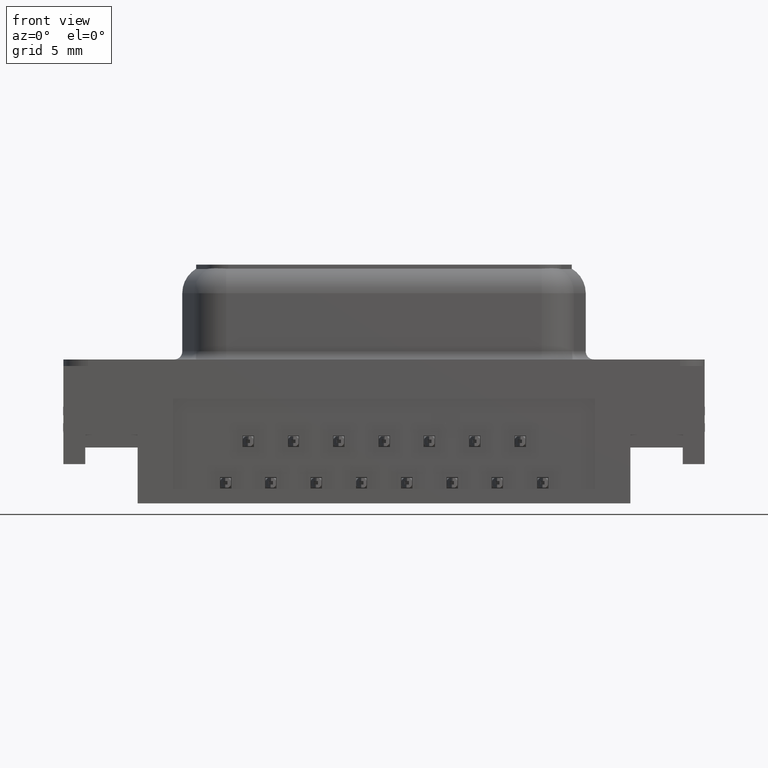
[diagram: clean part render]
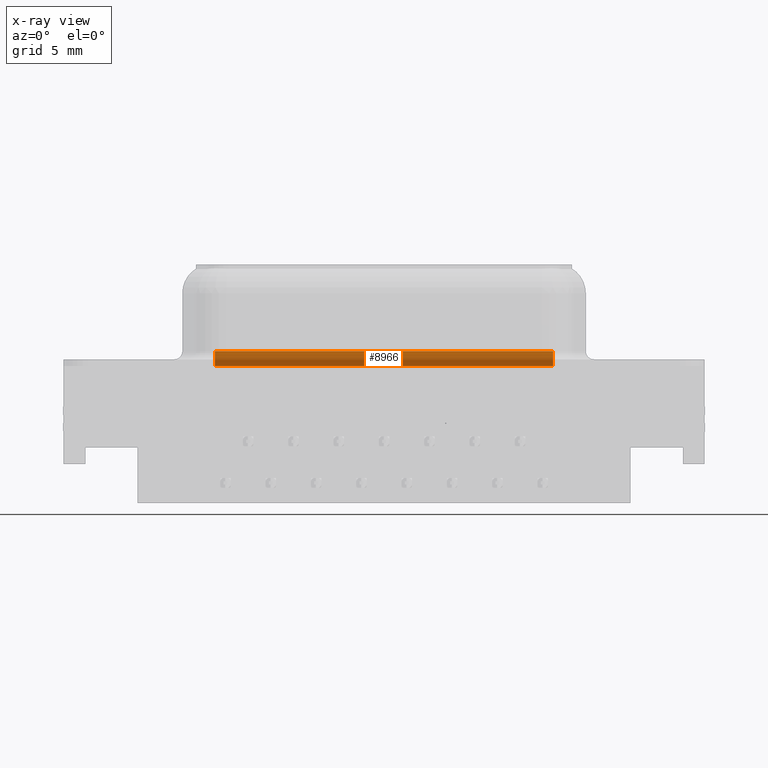
[diagram: x-ray — body ghosted, one internal face saturated and labeled with its STEP entity id]
A machine part, front view, then the same camera in x-ray: the body is ghosted and one INTERNAL B-rep face — a face not visible from any outside direction — is saturated and labeled: STEP entity #8966.
In plain terms, the highlighted cylindrical surface (edge-blend (fillet) strip) has radius 0.9 mm, axis along (-1, 0, 0).
Its self-contained STEP definition (entity closure, byte-faithful):
#137 = DIRECTION ( 'NONE',  ( 0.0000000000000000000, 1.000000000000000000, 0.0000000000000000000 ) ) ;
#684 = ORIENTED_EDGE ( 'NONE', *, *, #12441, .F. ) ;
#723 = DIRECTION ( 'NONE',  ( -1.000000000000000000, 1.679306365902039600E-016, 0.0000000000000000000 ) ) ;
#955 = CARTESIAN_POINT ( 'NONE',  ( 34.75499999999999500, 4.450000000000001100, 0.0000000000000000000 ) ) ;
#1250 = CARTESIAN_POINT ( 'NONE',  ( 26.98999999999999500, 3.549999999999996700, 0.8999999999999998000 ) ) ;
#1878 = DIRECTION ( 'NONE',  ( -1.000000000000000000, 1.679306365902039600E-016, 0.0000000000000000000 ) ) ;
#2197 = ORIENTED_EDGE ( 'NONE', *, *, #10938, .T. ) ;
#5005 = AXIS2_PLACEMENT_3D ( 'NONE', #9206, #723, #25189 ) ;
#5440 = AXIS2_PLACEMENT_3D ( 'NONE', #24093, #12134, #137 ) ;
#8000 = VERTEX_POINT ( 'NONE', #21009 ) ;
#8400 = CIRCLE ( 'NONE', #16498, 0.8999999999999998000 ) ;
#8966 = ADVANCED_FACE ( 'NONE', ( #17306 ), #11952, .T. ) ;
#9073 = VECTOR ( 'NONE', #20974, 1000.000000000000000 ) ;
#9206 = CARTESIAN_POINT ( 'NONE',  ( 6.330000000000000100, 4.450000000000001100, 0.8999999999999998000 ) ) ;
#9453 = VECTOR ( 'NONE', #16995, 1000.000000000000000 ) ;
#10938 = EDGE_CURVE ( 'NONE', #19751, #23447, #20051, .T. ) ;
#11952 = CYLINDRICAL_SURFACE ( 'NONE', #5005, 0.8999999999999998000 ) ;
#12134 = DIRECTION ( 'NONE',  ( -1.000000000000000000, 6.123233995736766000E-017, -0.0000000000000000000 ) ) ;
#12441 = EDGE_CURVE ( 'NONE', #8000, #23447, #8400, .T. ) ;
#12965 = CARTESIAN_POINT ( 'NONE',  ( 6.330000000000000100, 3.550000000000000300, 0.8999999999999998000 ) ) ;
#13248 = ORIENTED_EDGE ( 'NONE', *, *, #21512, .T. ) ;
#13858 = CARTESIAN_POINT ( 'NONE',  ( 6.330000000000000100, 4.450000000000001100, 0.8999999999999998000 ) ) ;
#14484 = EDGE_CURVE ( 'NONE', #16898, #19751, #23920, .T. ) ;
#15406 = LINE ( 'NONE', #955, #9453 ) ;
#15567 = EDGE_LOOP ( 'NONE', ( #684, #13248, #25784, #2197 ) ) ;
#15874 = DIRECTION ( 'NONE',  ( 0.0000000000000000000, -1.000000000000000000, 0.0000000000000000000 ) ) ;
#16498 = AXIS2_PLACEMENT_3D ( 'NONE', #13858, #1878, #15874 ) ;
#16898 = VERTEX_POINT ( 'NONE', #23725 ) ;
#16995 = DIRECTION ( 'NONE',  ( 1.000000000000000000, 0.0000000000000000000, -0.0000000000000000000 ) ) ;
#17306 = FACE_OUTER_BOUND ( 'NONE', #15567, .T. ) ;
#18692 = CARTESIAN_POINT ( 'NONE',  ( 6.330000000000000100, 3.550000000000000300, 0.8999999999999998000 ) ) ;
#19751 = VERTEX_POINT ( 'NONE', #1250 ) ;
#20051 = LINE ( 'NONE', #12965, #9073 ) ;
#20974 = DIRECTION ( 'NONE',  ( -1.000000000000000000, 1.679306365902039600E-016, -0.0000000000000000000 ) ) ;
#21009 = CARTESIAN_POINT ( 'NONE',  ( 6.329999999999999200, 4.450000000000001100, 0.0000000000000000000 ) ) ;
#21512 = EDGE_CURVE ( 'NONE', #8000, #16898, #15406, .T. ) ;
#23447 = VERTEX_POINT ( 'NONE', #18692 ) ;
#23725 = CARTESIAN_POINT ( 'NONE',  ( 26.98999999999999500, 4.449999999999997500, 0.0000000000000000000 ) ) ;
#23920 = CIRCLE ( 'NONE', #5440, 0.8999999999999998000 ) ;
#24093 = CARTESIAN_POINT ( 'NONE',  ( 26.98999999999999500, 4.449999999999995700, 0.8999999999999998000 ) ) ;
#25189 = DIRECTION ( 'NONE',  ( 0.0000000000000000000, -1.000000000000000000, 0.0000000000000000000 ) ) ;
#25784 = ORIENTED_EDGE ( 'NONE', *, *, #14484, .T. ) ;